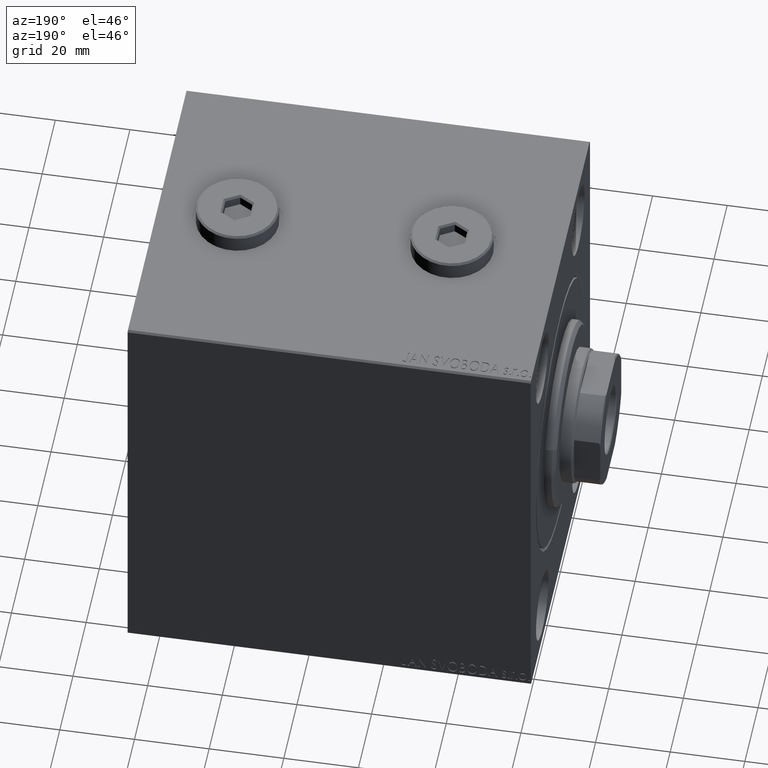
[diagram: clean part render]
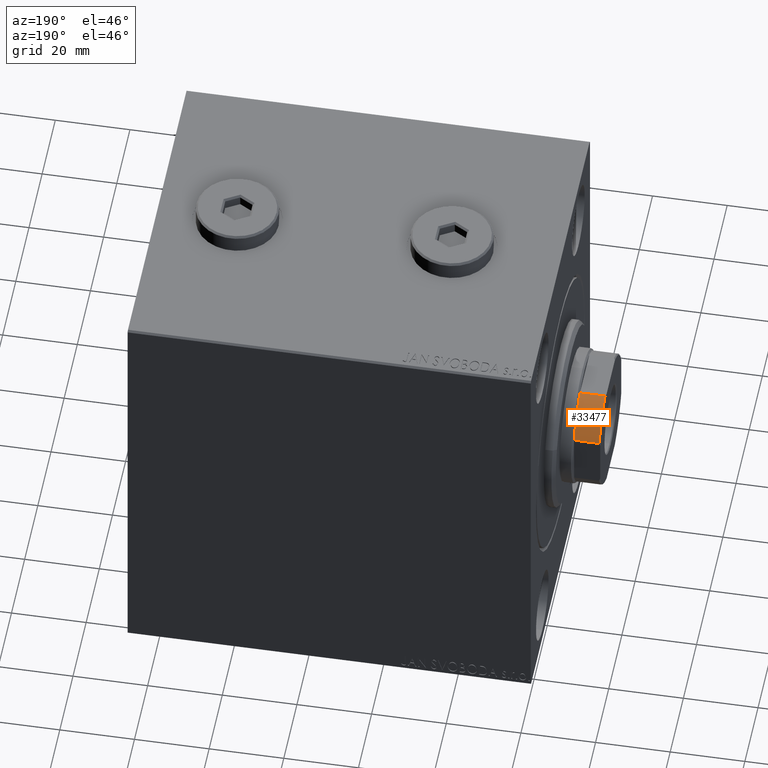
[diagram: same view with one face highlighted and labeled with its STEP entity id]
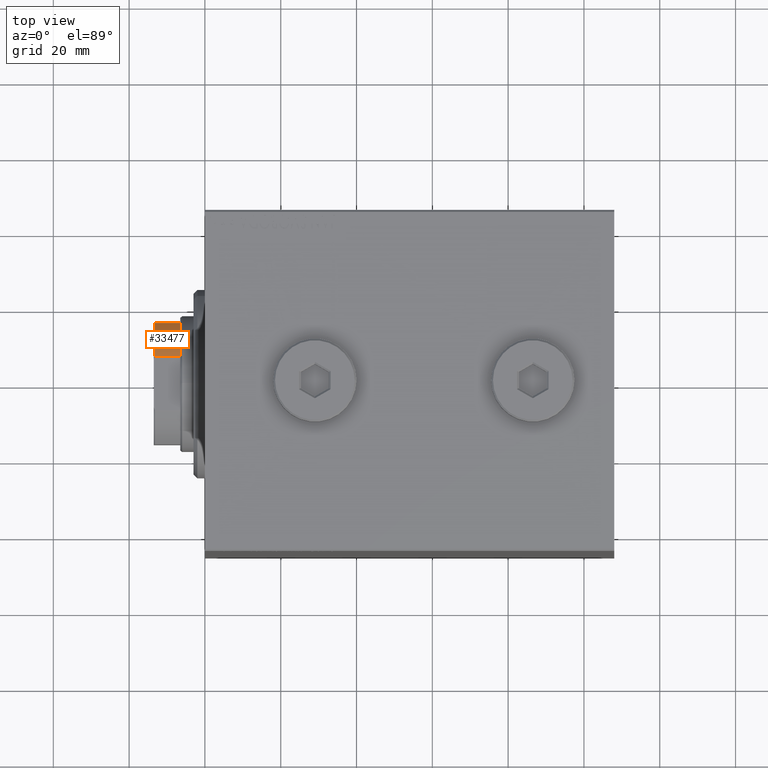
[diagram: same view with one face highlighted and labeled with its STEP entity id]
A machine part, auxiliary view. The second image highlights one B-rep face of the part: STEP entity #33477.
A second angle (top view) of the same face is appended — the face is thin or edge-on in the first view.
In plain terms, the highlighted cylindrical surface (partial cylindrical patch) has radius 17.5 mm, axis along (-1, 0, 0).
Its self-contained STEP definition (entity closure, byte-faithful):
#428 = EDGE_CURVE ( 'NONE', #10973, #8627, #16122, .T. ) ;
#2195 = CARTESIAN_POINT ( 'NONE',  ( 0.000000000000000000, 0.000000000000000000, -0.001000000000001000089 ) ) ;
#2236 = EDGE_CURVE ( 'NONE', #32154, #10973, #5817, .T. ) ;
#3216 = DIRECTION ( 'NONE',  ( -0.000000000000000000, -0.000000000000000000, 1.000000000000000000 ) ) ;
#3552 = CARTESIAN_POINT ( 'NONE',  ( 0.000000000000000000, 0.000000000000000000, 97.00000000000000000 ) ) ;
#4851 = ORIENTED_EDGE ( 'NONE', *, *, #33731, .T. ) ;
#5671 = CARTESIAN_POINT ( 'NONE',  ( 7.088723439378916247, 16.00000000000000355, 97.00000000000002842 ) ) ;
#5817 = CIRCLE ( 'NONE', #41599, 17.50000000000002842 ) ;
#6592 = ORIENTED_EDGE ( 'NONE', *, *, #2236, .T. ) ;
#7327 = VECTOR ( 'NONE', #9046, 1000.000000000000000 ) ;
#8627 = VERTEX_POINT ( 'NONE', #27269 ) ;
#9046 = DIRECTION ( 'NONE',  ( -0.000000000000000000, -0.000000000000000000, 1.000000000000000000 ) ) ;
#9479 = VERTEX_POINT ( 'NONE', #9707 ) ;
#9673 = DIRECTION ( 'NONE',  ( 1.000000000000000000, -1.776356839400250465E-15, 0.000000000000000000 ) ) ;
#9707 = CARTESIAN_POINT ( 'NONE',  ( 16.00000000000000000, 7.088723439378916247, 103.7000000000000313 ) ) ;
#10545 = CARTESIAN_POINT ( 'NONE',  ( 16.00000000000000000, 7.088723439378916247, 97.00000000000002842 ) ) ;
#10973 = VERTEX_POINT ( 'NONE', #5671 ) ;
#11226 = CARTESIAN_POINT ( 'NONE',  ( 16.00000000000000000, 7.088723439378916247, -0.001000000000001000089 ) ) ;
#11685 = CIRCLE ( 'NONE', #13847, 17.50000000000000000 ) ;
#12921 = DIRECTION ( 'NONE',  ( -0.000000000000000000, -0.000000000000000000, 1.000000000000000000 ) ) ;
#13847 = AXIS2_PLACEMENT_3D ( 'NONE', #41682, #38030, #9673 ) ;
#16034 = ORIENTED_EDGE ( 'NONE', *, *, #17528, .F. ) ;
#16122 = LINE ( 'NONE', #19314, #7327 ) ;
#17028 = DIRECTION ( 'NONE',  ( 0.000000000000000000, 0.000000000000000000, 1.000000000000000000 ) ) ;
#17453 = AXIS2_PLACEMENT_3D ( 'NONE', #2195, #12921, #26874 ) ;
#17528 = EDGE_CURVE ( 'NONE', #32154, #9479, #34329, .T. ) ;
#19314 = CARTESIAN_POINT ( 'NONE',  ( 7.088723439378914470, 16.00000000000000000, -0.001000000000001000089 ) ) ;
#19538 = FACE_OUTER_BOUND ( 'NONE', #31748, .T. ) ;
#25270 = VECTOR ( 'NONE', #3216, 1000.000000000000000 ) ;
#26874 = DIRECTION ( 'NONE',  ( 1.000000000000000000, 0.000000000000000000, 0.000000000000000000 ) ) ;
#27269 = CARTESIAN_POINT ( 'NONE',  ( 7.088723439378914470, 16.00000000000000000, 103.7000000000000313 ) ) ;
#27816 = ORIENTED_EDGE ( 'NONE', *, *, #428, .T. ) ;
#31748 = EDGE_LOOP ( 'NONE', ( #27816, #4851, #16034, #6592 ) ) ;
#32154 = VERTEX_POINT ( 'NONE', #10545 ) ;
#33477 = ADVANCED_FACE ( 'NONE', ( #19538 ), #33533, .T. ) ;
#33533 = CYLINDRICAL_SURFACE ( 'NONE', #17453, 17.50000000000000000 ) ;
#33731 = EDGE_CURVE ( 'NONE', #8627, #9479, #11685, .T. ) ;
#34329 = LINE ( 'NONE', #11226, #25270 ) ;
#38030 = DIRECTION ( 'NONE',  ( -0.000000000000000000, -0.000000000000000000, -1.000000000000000000 ) ) ;
#41599 = AXIS2_PLACEMENT_3D ( 'NONE', #3552, #17028, #41985 ) ;
#41682 = CARTESIAN_POINT ( 'NONE',  ( 0.000000000000000000, 0.000000000000000000, 103.7000000000000313 ) ) ;
#41985 = DIRECTION ( 'NONE',  ( 1.000000000000000000, 0.000000000000000000, 0.000000000000000000 ) ) ;